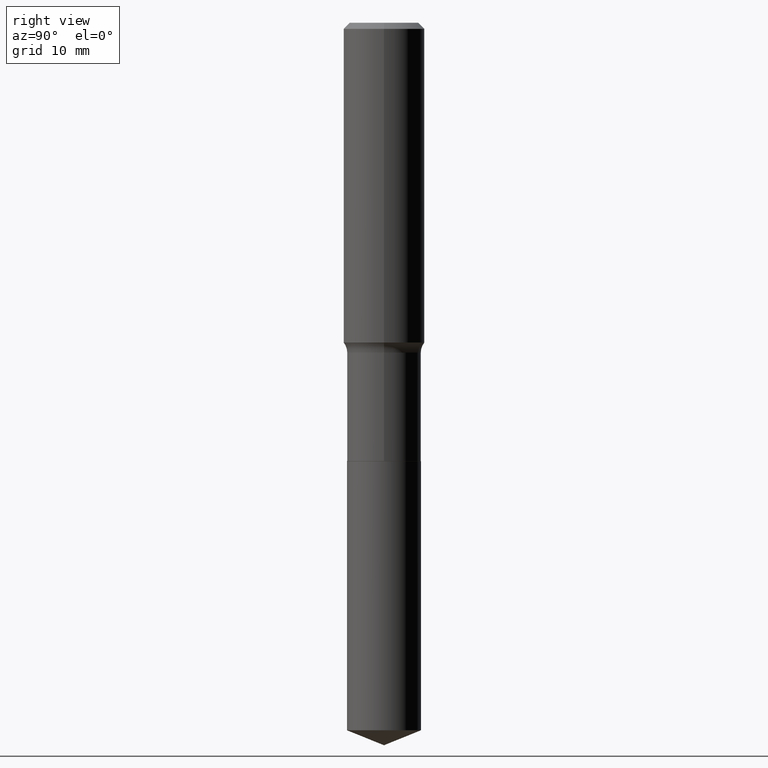
[diagram: clean part render]
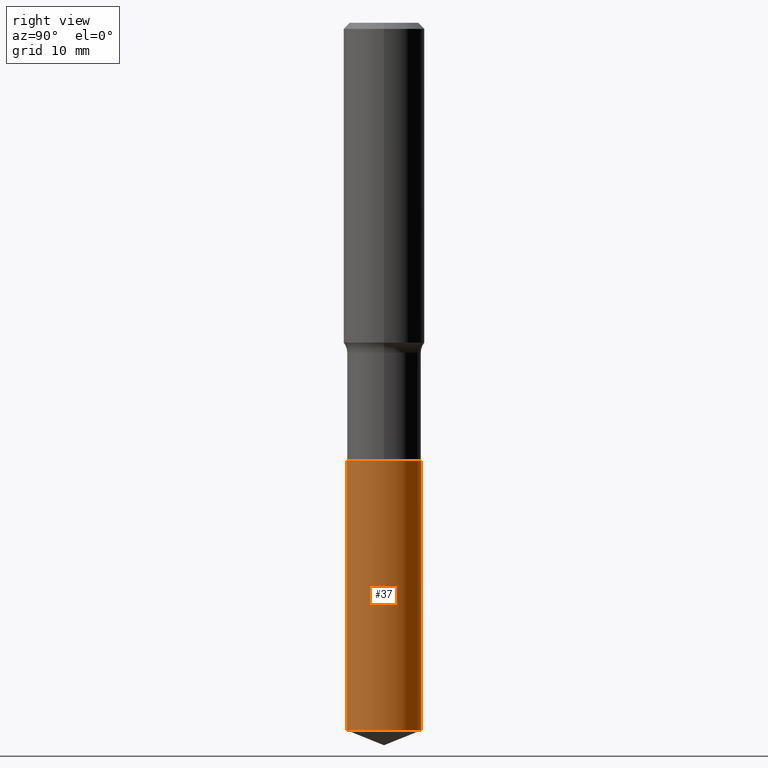
[diagram: same view with one face highlighted and labeled with its STEP entity id]
A machine part, right view. The second image highlights one B-rep face of the part: STEP entity #37.
In plain terms, the highlighted cylindrical surface (partial cylindrical patch) has radius 4.5644 mm, axis along (-0, 0, 1).
Its self-contained STEP definition (entity closure, byte-faithful):
#13 = EDGE_CURVE ( 'NONE', #434, #166, #482, .T. ) ;
#37 = ADVANCED_FACE ( 'NONE', ( #459 ), #74, .T. ) ;
#67 = ORIENTED_EDGE ( 'NONE', *, *, #380, .T. ) ;
#74 = CYLINDRICAL_SURFACE ( 'NONE', #385, 0.1796999999999999986 ) ;
#91 = AXIS2_PLACEMENT_3D ( 'NONE', #203, #394, #156 ) ;
#97 = EDGE_CURVE ( 'NONE', #133, #382, #266, .T. ) ;
#120 = CARTESIAN_POINT ( 'NONE',  ( 5.198822135068982087E-29, -7.422540178246643119E-15, -2.125899999999999679 ) ) ;
#133 = VERTEX_POINT ( 'NONE', #299 ) ;
#138 = DIRECTION ( 'NONE',  ( -6.982962677686265922E-15, -1.000000000000000000, 3.040454083098790380E-15 ) ) ;
#139 = CARTESIAN_POINT ( 'NONE',  ( 1.276845296160951695E-15, 0.1796999999999925879, -2.125900000000000567 ) ) ;
#156 = DIRECTION ( 'NONE',  ( -6.982962677686265922E-15, -1.000000000000000000, 3.040454083098790380E-15 ) ) ;
#166 = VERTEX_POINT ( 'NONE', #449 ) ;
#178 = EDGE_CURVE ( 'NONE', #382, #166, #359, .T. ) ;
#193 = ORIENTED_EDGE ( 'NONE', *, *, #13, .T. ) ;
#195 = DIRECTION ( 'NONE',  ( -2.445510554620705359E-29, 3.491421552707238452E-15, 1.000000000000000000 ) ) ;
#197 = EDGE_LOOP ( 'NONE', ( #67, #193, #215, #200 ) ) ;
#200 = ORIENTED_EDGE ( 'NONE', *, *, #97, .F. ) ;
#203 = CARTESIAN_POINT ( 'NONE',  ( 8.391183022523980954E-29, -1.198022960854587011E-14, -3.431296487217422531 ) ) ;
#215 = ORIENTED_EDGE ( 'NONE', *, *, #178, .F. ) ;
#218 = CARTESIAN_POINT ( 'NONE',  ( -1.254838393180170060E-15, -0.1797000000000074094, -2.125899999999999235 ) ) ;
#236 = VECTOR ( 'NONE', #195, 39.37007874015748143 ) ;
#266 = LINE ( 'NONE', #218, #410 ) ;
#299 = CARTESIAN_POINT ( 'NONE',  ( -1.254838393180137914E-15, -0.1797000000000119613, -3.431296487217422087 ) ) ;
#303 = DIRECTION ( 'NONE',  ( -6.982962677686265922E-15, -1.000000000000000000, 3.040454083098790380E-15 ) ) ;
#354 = CARTESIAN_POINT ( 'NONE',  ( -1.254838393180170060E-15, -0.1797000000000074094, -2.125899999999999235 ) ) ;
#359 = CIRCLE ( 'NONE', #471, 0.1796999999999999986 ) ;
#364 = DIRECTION ( 'NONE',  ( -2.445510554620705079E-29, 3.491421552707238058E-15, 1.000000000000000000 ) ) ;
#366 = DIRECTION ( 'NONE',  ( -2.445510554620705079E-29, 3.491421552707238058E-15, 1.000000000000000000 ) ) ;
#380 = EDGE_CURVE ( 'NONE', #133, #434, #454, .T. ) ;
#382 = VERTEX_POINT ( 'NONE', #354 ) ;
#385 = AXIS2_PLACEMENT_3D ( 'NONE', #120, #366, #303 ) ;
#394 = DIRECTION ( 'NONE',  ( -2.445510554620705079E-29, 3.491421552707238058E-15, 1.000000000000000000 ) ) ;
#403 = CARTESIAN_POINT ( 'NONE',  ( 5.198822135068982087E-29, -7.422540178246643119E-15, -2.125899999999999679 ) ) ;
#410 = VECTOR ( 'NONE', #416, 39.37007874015748143 ) ;
#416 = DIRECTION ( 'NONE',  ( -2.445510554620705359E-29, 3.491421552707238452E-15, 1.000000000000000000 ) ) ;
#434 = VERTEX_POINT ( 'NONE', #455 ) ;
#449 = CARTESIAN_POINT ( 'NONE',  ( 1.276845296160984038E-15, 0.1796999999999925879, -2.125900000000000567 ) ) ;
#454 = CIRCLE ( 'NONE', #91, 0.1796999999999999986 ) ;
#455 = CARTESIAN_POINT ( 'NONE',  ( 1.276845296160983446E-15, 0.1796999999999880082, -3.431296487217423419 ) ) ;
#459 = FACE_OUTER_BOUND ( 'NONE', #197, .T. ) ;
#471 = AXIS2_PLACEMENT_3D ( 'NONE', #403, #364, #138 ) ;
#482 = LINE ( 'NONE', #139, #236 ) ;